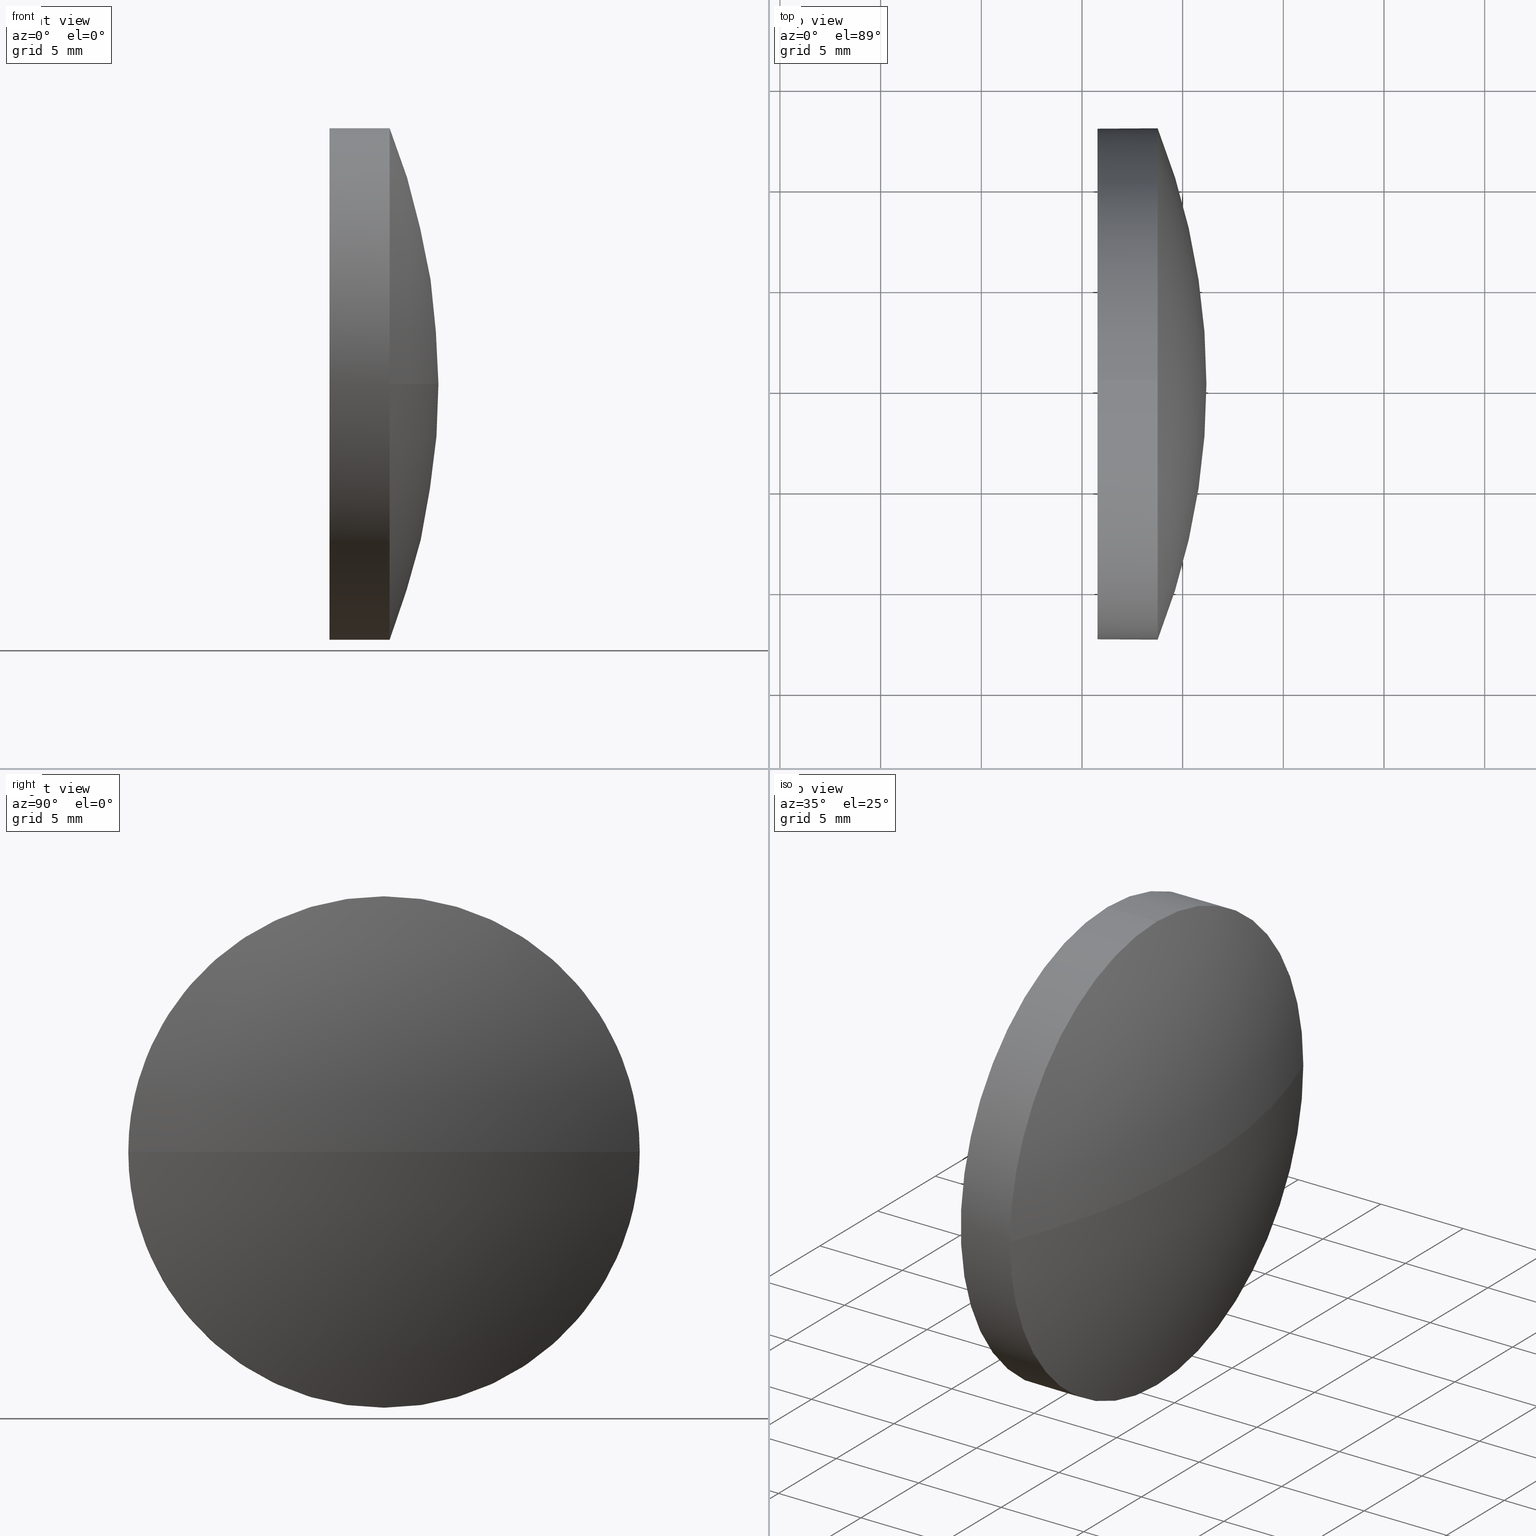
[diagram: canonical four-view strip — front | top / right | iso, engineering-drawing reading convention]
A machine part, canonical four-view strip (front | top / right | iso — engineering-drawing reading convention). The complete STEP part file that produces these views, byte-faithful:
ISO-10303-21;
HEADER;
FILE_DESCRIPTION (( 'STEP AP214' ),
    '1' );
FILE_NAME ('400005.STEP',
    '2019-08-21T03:16:41',
    ( '' ),
    ( '' ),
    'SwSTEP 2.0',
    'SolidWorks 2016',
    '' );
FILE_SCHEMA (( 'AUTOMOTIVE_DESIGN' ));
ENDSEC;

DATA;
#1 = CARTESIAN_POINT ( 'NONE',  ( 110.1653732284884500, 65.23355492641219700, 0.0000000000000000000 ) ) ;
#2 = FILL_AREA_STYLE_COLOUR ( '', #37 ) ;
#3 = UNCERTAINTY_MEASURE_WITH_UNIT (LENGTH_MEASURE( 1.000000000000000100E-005 ), #68, 'distance_accuracy_value', 'NONE');
#4 = CARTESIAN_POINT ( 'NONE',  ( 110.1653732284884500, 65.23355492641219700, -12.70000000000001000 ) ) ;
#5 = ORIENTED_EDGE ( 'NONE', *, *, #123, .T. ) ;
#6 = SURFACE_STYLE_FILL_AREA ( #31 ) ;
#7 = EDGE_CURVE ( 'NONE', #125, #14, #66, .T. ) ;
#8 = ORIENTED_EDGE ( 'NONE', *, *, #162, .F. ) ;
#9 = AXIS2_PLACEMENT_3D ( 'NONE', #106, #129, #49 ) ;
#10 = FILL_AREA_STYLE_COLOUR ( '', #44 ) ;
#11 = AXIS2_PLACEMENT_3D ( 'NONE', #176, #23, #80 ) ;
#12 =( NAMED_UNIT ( * ) PLANE_ANGLE_UNIT ( ) SI_UNIT ( $, .RADIAN. ) );
#13 = LINE ( 'NONE', #4, #158 ) ;
#14 = VERTEX_POINT ( 'NONE', #19 ) ;
#15 = DIRECTION ( 'NONE',  ( -1.000000000000000000, -0.0000000000000000000, -0.0000000000000000000 ) ) ;
#16 = CARTESIAN_POINT ( 'NONE',  ( 115.7736064308381300, 65.23355492641219700, -12.70000000000000300 ) ) ;
#17 = EDGE_CURVE ( 'NONE', #52, #82, #144, .T. ) ;
#18 = FILL_AREA_STYLE ('',( #2 ) ) ;
#19 = CARTESIAN_POINT ( 'NONE',  ( 118.7594658620225400, 65.23355492641219700, 12.70000000000001500 ) ) ;
#20 = DIRECTION ( 'NONE',  ( 0.0000000000000000000, 0.0000000000000000000, -1.000000000000000000 ) ) ;
#21 = DIRECTION ( 'NONE',  ( -1.000000000000000000, -0.0000000000000000000, -0.0000000000000000000 ) ) ;
#22 = ORIENTED_EDGE ( 'NONE', *, *, #154, .T. ) ;
#23 = DIRECTION ( 'NONE',  ( -1.000000000000000000, -0.0000000000000000000, -0.0000000000000000000 ) ) ;
#24 = EDGE_LOOP ( 'NONE', ( #165, #22, #8, #109 ) ) ;
#25 =( GEOMETRIC_REPRESENTATION_CONTEXT ( 3 ) GLOBAL_UNCERTAINTY_ASSIGNED_CONTEXT ( ( #54 ) ) GLOBAL_UNIT_ASSIGNED_CONTEXT ( ( #87, #53, #184 ) ) REPRESENTATION_CONTEXT ( 'NONE', 'WORKASPACE' ) );
#26 = VERTEX_POINT ( 'NONE', #90 ) ;
#27 = FACE_OUTER_BOUND ( 'NONE', #24, .T. ) ;
#28 = PRESENTATION_STYLE_ASSIGNMENT (( #43 ) ) ;
#29 =( NAMED_UNIT ( * ) SI_UNIT ( $, .STERADIAN. ) SOLID_ANGLE_UNIT ( ) );
#30 = PRODUCT ( '400005', '400005', '', ( #157 ) ) ;
#31 = FILL_AREA_STYLE ('',( #10 ) ) ;
#32 = CARTESIAN_POINT ( 'NONE',  ( 118.7594658620225400, 52.53355492641217900, -1.555301434917140800E-015 ) ) ;
#33 = ORIENTED_EDGE ( 'NONE', *, *, #181, .F. ) ;
#34 =( LENGTH_UNIT ( ) NAMED_UNIT ( * ) SI_UNIT ( .MILLI., .METRE. ) );
#35 = AXIS2_PLACEMENT_3D ( 'NONE', #161, #45, #73 ) ;
#36 = CIRCLE ( 'NONE', #127, 12.70000000000001700 ) ;
#37 = COLOUR_RGB ( '',1.000000000000000000, 1.000000000000000000, 1.000000000000000000 ) ;
#38 = ADVANCED_FACE ( 'NONE', ( #137 ), #46, .F. ) ;
#39 = APPLICATION_PROTOCOL_DEFINITION ( 'draft international standard', 'automotive_design', 1998, #155 ) ;
#40 = ORIENTED_EDGE ( 'NONE', *, *, #162, .T. ) ;
#41 = ORIENTED_EDGE ( 'NONE', *, *, #115, .T. ) ;
#42 = STYLED_ITEM ( 'NONE', ( #28 ), #101 ) ;
#43 = SURFACE_STYLE_USAGE ( .BOTH. , #86 ) ;
#44 = COLOUR_RGB ( '',1.000000000000000000, 1.000000000000000000, 1.000000000000000000 ) ;
#45 = DIRECTION ( 'NONE',  ( -0.0000000000000000000, 0.0000000000000000000, -1.000000000000000000 ) ) ;
#46 = PLANE ( 'NONE',  #71 ) ;
#47 = SURFACE_STYLE_USAGE ( .BOTH. , #118 ) ;
#48 = CARTESIAN_POINT ( 'NONE',  ( 118.7594658620225400, 65.23355492641219700, 0.0000000000000000000 ) ) ;
#49 = DIRECTION ( 'NONE',  ( 0.0000000000000000000, 1.000000000000000000, 1.224646799147353200E-016 ) ) ;
#50 = DIRECTION ( 'NONE',  ( 0.0000000000000000000, 0.0000000000000000000, 1.000000000000000000 ) ) ;
#51 = ORIENTED_EDGE ( 'NONE', *, *, #140, .F. ) ;
#52 = VERTEX_POINT ( 'NONE', #75 ) ;
#53 =( NAMED_UNIT ( * ) PLANE_ANGLE_UNIT ( ) SI_UNIT ( $, .RADIAN. ) );
#54 = UNCERTAINTY_MEASURE_WITH_UNIT (LENGTH_MEASURE( 1.000000000000000100E-005 ), #87, 'distance_accuracy_value', 'NONE');
#55 = DIRECTION ( 'NONE',  ( -1.000000000000000000, -0.0000000000000000000, -0.0000000000000000000 ) ) ;
#56 = DIRECTION ( 'NONE',  ( 1.000000000000000000, 0.0000000000000000000, 0.0000000000000000000 ) ) ;
#57 = DIRECTION ( 'NONE',  ( 0.0000000000000000000, 0.0000000000000000000, 1.000000000000000000 ) ) ;
#58 = PRODUCT_DEFINITION_CONTEXT ( 'detailed design', #155, 'design' ) ;
#59 = DIRECTION ( 'NONE',  ( 0.0000000000000000000, 1.000000000000000000, 0.0000000000000000000 ) ) ;
#60 = DIRECTION ( 'NONE',  ( -1.000000000000000000, -0.0000000000000000000, -0.0000000000000000000 ) ) ;
#61 = DIRECTION ( 'NONE',  ( 0.0000000000000000000, 0.0000000000000000000, 1.000000000000000000 ) ) ;
#62 = ORIENTED_EDGE ( 'NONE', *, *, #7, .F. ) ;
#63 = CARTESIAN_POINT ( 'NONE',  ( 110.1653732284884500, 65.23355492641219700, 0.0000000000000000000 ) ) ;
#64 = DIRECTION ( 'NONE',  ( -0.0000000000000000000, 0.0000000000000000000, 1.000000000000000000 ) ) ;
#65 = ORIENTED_EDGE ( 'NONE', *, *, #181, .T. ) ;
#66 = CIRCLE ( 'NONE', #149, 12.70000000000001700 ) ;
#67 = ADVANCED_FACE ( 'NONE', ( #102 ), #77, .T. ) ;
#68 =( LENGTH_UNIT ( ) NAMED_UNIT ( * ) SI_UNIT ( .MILLI., .METRE. ) );
#69 = MANIFOLD_SOLID_BREP ( '��ת1', #152 ) ;
#70 = SHAPE_DEFINITION_REPRESENTATION ( #91, #101 ) ;
#71 = AXIS2_PLACEMENT_3D ( 'NONE', #114, #160, #20 ) ;
#72 = EDGE_LOOP ( 'NONE', ( #83, #65, #126, #138, #98 ) ) ;
#73 = DIRECTION ( 'NONE',  ( 0.0000000000000000000, 1.000000000000000000, 0.0000000000000000000 ) ) ;
#74 = CIRCLE ( 'NONE', #110, 12.70000000000000300 ) ;
#75 = CARTESIAN_POINT ( 'NONE',  ( 118.7594658620225400, 77.93355492641221400, 0.0000000000000000000 ) ) ;
#76 = DIRECTION ( 'NONE',  ( -1.000000000000000000, -0.0000000000000000000, -0.0000000000000000000 ) ) ;
#77 = SPHERICAL_SURFACE ( 'NONE', #35, 34.50600000000000700 ) ;
#78 = CARTESIAN_POINT ( 'NONE',  ( 118.7594658620225400, 65.23355492641219700, 0.0000000000000000000 ) ) ;
#79 = DIRECTION ( 'NONE',  ( -1.000000000000000000, -0.0000000000000000000, -0.0000000000000000000 ) ) ;
#80 = DIRECTION ( 'NONE',  ( 0.0000000000000000000, 0.0000000000000000000, 1.000000000000000000 ) ) ;
#81 = ADVANCED_FACE ( 'NONE', ( #27 ), #139, .T. ) ;
#82 = VERTEX_POINT ( 'NONE', #89 ) ;
#83 = ORIENTED_EDGE ( 'NONE', *, *, #17, .T. ) ;
#84 = AXIS2_PLACEMENT_3D ( 'NONE', #171, #88, #59 ) ;
#85 = APPLICATION_CONTEXT ( 'automotive_design' ) ;
#86 = SURFACE_SIDE_STYLE ('',( #6 ) ) ;
#87 =( LENGTH_UNIT ( ) NAMED_UNIT ( * ) SI_UNIT ( .MILLI., .METRE. ) );
#88 = DIRECTION ( 'NONE',  ( -0.0000000000000000000, 0.0000000000000000000, -1.000000000000000000 ) ) ;
#89 = CARTESIAN_POINT ( 'NONE',  ( 118.7594658620225400, 65.23355492641219700, -12.70000000000001500 ) ) ;
#90 = CARTESIAN_POINT ( 'NONE',  ( 115.7736064308381300, 65.23355492641219700, 12.70000000000000300 ) ) ;
#91 = PRODUCT_DEFINITION_SHAPE ( 'NONE', 'NONE',  #179 ) ;
#92 = DIRECTION ( 'NONE',  ( 0.0000000000000000000, 0.0000000000000000000, 1.000000000000000000 ) ) ;
#93 = DIRECTION ( 'NONE',  ( -1.000000000000000000, -0.0000000000000000000, -0.0000000000000000000 ) ) ;
#94 = MECHANICAL_DESIGN_GEOMETRIC_PRESENTATION_REPRESENTATION (  '', ( #122 ), #96 ) ;
#95 = ADVANCED_FACE ( 'NONE', ( #180 ), #132, .T. ) ;
#96 =( GEOMETRIC_REPRESENTATION_CONTEXT ( 3 ) GLOBAL_UNCERTAINTY_ASSIGNED_CONTEXT ( ( #178 ) ) GLOBAL_UNIT_ASSIGNED_CONTEXT ( ( #34, #172, #143 ) ) REPRESENTATION_CONTEXT ( 'NONE', 'WORKASPACE' ) );
#97 = AXIS2_PLACEMENT_3D ( 'NONE', #1, #15, #119 ) ;
#98 = ORIENTED_EDGE ( 'NONE', *, *, #136, .T. ) ;
#99 = CARTESIAN_POINT ( 'NONE',  ( 110.1653732284884500, 65.23355492641219700, 12.70000000000001000 ) ) ;
#100 = ORIENTED_EDGE ( 'NONE', *, *, #154, .F. ) ;
#101 = ADVANCED_BREP_SHAPE_REPRESENTATION ( '400005', ( #69, #148 ), #112 ) ;
#102 = FACE_OUTER_BOUND ( 'NONE', #134, .T. ) ;
#103 = CARTESIAN_POINT ( 'NONE',  ( 115.7736064308381300, 65.23355492641219700, 0.0000000000000000000 ) ) ;
#104 = PRESENTATION_LAYER_ASSIGNMENT (  '', '', ( #122 ) ) ;
#105 = CARTESIAN_POINT ( 'NONE',  ( 118.7594658620225400, 65.23355492641219700, 0.0000000000000000000 ) ) ;
#106 = CARTESIAN_POINT ( 'NONE',  ( 86.67560643083813000, 65.23355492641219700, 0.0000000000000000000 ) ) ;
#107 = CIRCLE ( 'NONE', #9, 34.50600000000000700 ) ;
#108 = ORIENTED_EDGE ( 'NONE', *, *, #136, .F. ) ;
#109 = ORIENTED_EDGE ( 'NONE', *, *, #17, .F. ) ;
#110 = AXIS2_PLACEMENT_3D ( 'NONE', #103, #79, #50 ) ;
#111 = CIRCLE ( 'NONE', #186, 34.50600000000000700 ) ;
#112 =( GEOMETRIC_REPRESENTATION_CONTEXT ( 3 ) GLOBAL_UNCERTAINTY_ASSIGNED_CONTEXT ( ( #3 ) ) GLOBAL_UNIT_ASSIGNED_CONTEXT ( ( #68, #12, #29 ) ) REPRESENTATION_CONTEXT ( 'NONE', 'WORKASPACE' ) );
#113 = APPLICATION_PROTOCOL_DEFINITION ( 'draft international standard', 'automotive_design', 1998, #85 ) ;
#114 = CARTESIAN_POINT ( 'NONE',  ( 115.7736064308381300, 65.23355492641219700, 0.0000000000000000000 ) ) ;
#115 = EDGE_CURVE ( 'NONE', #14, #26, #173, .T. ) ;
#116 = CARTESIAN_POINT ( 'NONE',  ( 121.1816064308381400, 65.23355492641219700, 0.0000000000000000000 ) ) ;
#117 = DIRECTION ( 'NONE',  ( -1.000000000000000000, -0.0000000000000000000, -0.0000000000000000000 ) ) ;
#118 = SURFACE_SIDE_STYLE ('',( #133 ) ) ;
#119 = DIRECTION ( 'NONE',  ( 0.0000000000000000000, 0.0000000000000000000, 1.000000000000000000 ) ) ;
#120 = VERTEX_POINT ( 'NONE', #116 ) ;
#121 = CARTESIAN_POINT ( 'NONE',  ( 0.0000000000000000000, 0.0000000000000000000, 0.0000000000000000000 ) ) ;
#122 = STYLED_ITEM ( 'NONE', ( #175 ), #69 ) ;
#123 = EDGE_CURVE ( 'NONE', #26, #145, #74, .T. ) ;
#124 = PRODUCT_DEFINITION_FORMATION_WITH_SPECIFIED_SOURCE ( '�κ�', '', #30, .NOT_KNOWN. ) ;
#125 = VERTEX_POINT ( 'NONE', #32 ) ;
#126 = ORIENTED_EDGE ( 'NONE', *, *, #123, .F. ) ;
#127 = AXIS2_PLACEMENT_3D ( 'NONE', #78, #163, #92 ) ;
#128 = EDGE_CURVE ( 'NONE', #120, #52, #111, .T. ) ;
#129 = DIRECTION ( 'NONE',  ( 0.0000000000000000000, 1.224646799147353200E-016, -1.000000000000000000 ) ) ;
#130 = PRODUCT_RELATED_PRODUCT_CATEGORY ( 'part', '', ( #30 ) ) ;
#131 = DIRECTION ( 'NONE',  ( 0.0000000000000000000, 0.0000000000000000000, 1.000000000000000000 ) ) ;
#132 = CYLINDRICAL_SURFACE ( 'NONE', #97, 12.70000000000001000 ) ;
#133 = SURFACE_STYLE_FILL_AREA ( #18 ) ;
#134 = EDGE_LOOP ( 'NONE', ( #100, #182, #108, #62 ) ) ;
#135 = PRESENTATION_LAYER_ASSIGNMENT (  '', '', ( #42 ) ) ;
#136 = EDGE_CURVE ( 'NONE', #14, #52, #36, .T. ) ;
#137 = FACE_OUTER_BOUND ( 'NONE', #153, .T. ) ;
#138 = ORIENTED_EDGE ( 'NONE', *, *, #115, .F. ) ;
#139 = SPHERICAL_SURFACE ( 'NONE', #84, 34.50600000000000700 ) ;
#140 = EDGE_CURVE ( 'NONE', #145, #26, #183, .T. ) ;
#141 = EDGE_LOOP ( 'NONE', ( #33, #40, #170, #41, #51 ) ) ;
#142 = DIRECTION ( 'NONE',  ( 0.0000000000000000000, 0.0000000000000000000, 1.000000000000000000 ) ) ;
#143 =( NAMED_UNIT ( * ) SI_UNIT ( $, .STERADIAN. ) SOLID_ANGLE_UNIT ( ) );
#144 = CIRCLE ( 'NONE', #177, 12.70000000000001700 ) ;
#145 = VERTEX_POINT ( 'NONE', #16 ) ;
#146 = CIRCLE ( 'NONE', #151, 12.70000000000001700 ) ;
#147 = CARTESIAN_POINT ( 'NONE',  ( 86.67560643083813000, 65.23355492641219700, 0.0000000000000000000 ) ) ;
#148 = AXIS2_PLACEMENT_3D ( 'NONE', #121, #169, #56 ) ;
#149 = AXIS2_PLACEMENT_3D ( 'NONE', #174, #117, #57 ) ;
#150 = FACE_OUTER_BOUND ( 'NONE', #141, .T. ) ;
#151 = AXIS2_PLACEMENT_3D ( 'NONE', #105, #21, #131 ) ;
#152 = CLOSED_SHELL ( 'NONE', ( #95, #81, #67, #167, #38 ) ) ;
#153 = EDGE_LOOP ( 'NONE', ( #5, #156 ) ) ;
#154 = EDGE_CURVE ( 'NONE', #120, #125, #107, .T. ) ;
#155 = APPLICATION_CONTEXT ( 'automotive_design' ) ;
#156 = ORIENTED_EDGE ( 'NONE', *, *, #140, .T. ) ;
#157 = PRODUCT_CONTEXT ( 'NONE', #85, 'mechanical' ) ;
#158 = VECTOR ( 'NONE', #55, 1000.000000000000000 ) ;
#159 = AXIS2_PLACEMENT_3D ( 'NONE', #63, #93, #61 ) ;
#160 = DIRECTION ( 'NONE',  ( 1.000000000000000000, 0.0000000000000000000, 0.0000000000000000000 ) ) ;
#161 = CARTESIAN_POINT ( 'NONE',  ( 86.67560643083813000, 65.23355492641219700, 0.0000000000000000000 ) ) ;
#162 = EDGE_CURVE ( 'NONE', #82, #125, #146, .T. ) ;
#163 = DIRECTION ( 'NONE',  ( -1.000000000000000000, -0.0000000000000000000, -0.0000000000000000000 ) ) ;
#164 = MECHANICAL_DESIGN_GEOMETRIC_PRESENTATION_REPRESENTATION (  '', ( #42 ), #25 ) ;
#165 = ORIENTED_EDGE ( 'NONE', *, *, #128, .F. ) ;
#166 = DIRECTION ( 'NONE',  ( 1.000000000000000000, 0.0000000000000000000, 0.0000000000000000000 ) ) ;
#167 = ADVANCED_FACE ( 'NONE', ( #150 ), #168, .T. ) ;
#168 = CYLINDRICAL_SURFACE ( 'NONE', #159, 12.70000000000001000 ) ;
#169 = DIRECTION ( 'NONE',  ( 0.0000000000000000000, 0.0000000000000000000, 1.000000000000000000 ) ) ;
#170 = ORIENTED_EDGE ( 'NONE', *, *, #7, .T. ) ;
#171 = CARTESIAN_POINT ( 'NONE',  ( 86.67560643083813000, 65.23355492641219700, 0.0000000000000000000 ) ) ;
#172 =( NAMED_UNIT ( * ) PLANE_ANGLE_UNIT ( ) SI_UNIT ( $, .RADIAN. ) );
#173 = LINE ( 'NONE', #99, #185 ) ;
#174 = CARTESIAN_POINT ( 'NONE',  ( 118.7594658620225400, 65.23355492641219700, 0.0000000000000000000 ) ) ;
#175 = PRESENTATION_STYLE_ASSIGNMENT (( #47 ) ) ;
#176 = CARTESIAN_POINT ( 'NONE',  ( 115.7736064308381300, 65.23355492641219700, 0.0000000000000000000 ) ) ;
#177 = AXIS2_PLACEMENT_3D ( 'NONE', #48, #76, #142 ) ;
#178 = UNCERTAINTY_MEASURE_WITH_UNIT (LENGTH_MEASURE( 1.000000000000000100E-005 ), #34, 'distance_accuracy_value', 'NONE');
#179 = PRODUCT_DEFINITION ( 'δ֪', '', #124, #58 ) ;
#180 = FACE_OUTER_BOUND ( 'NONE', #72, .T. ) ;
#181 = EDGE_CURVE ( 'NONE', #82, #145, #13, .T. ) ;
#182 = ORIENTED_EDGE ( 'NONE', *, *, #128, .T. ) ;
#183 = CIRCLE ( 'NONE', #11, 12.70000000000000300 ) ;
#184 =( NAMED_UNIT ( * ) SI_UNIT ( $, .STERADIAN. ) SOLID_ANGLE_UNIT ( ) );
#185 = VECTOR ( 'NONE', #60, 1000.000000000000000 ) ;
#186 = AXIS2_PLACEMENT_3D ( 'NONE', #147, #64, #166 ) ;
ENDSEC;
END-ISO-10303-21;
